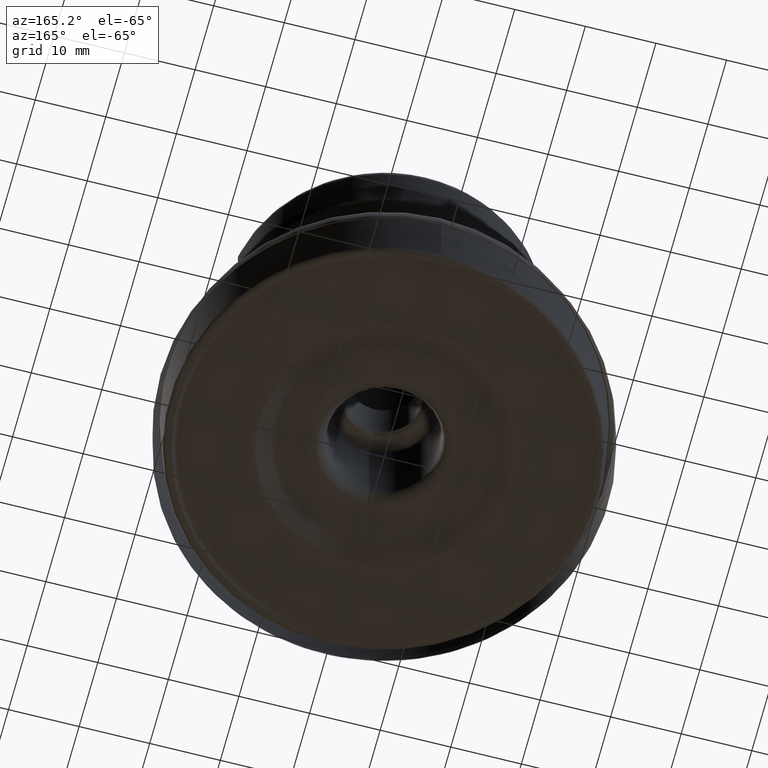
[diagram: clean part render]
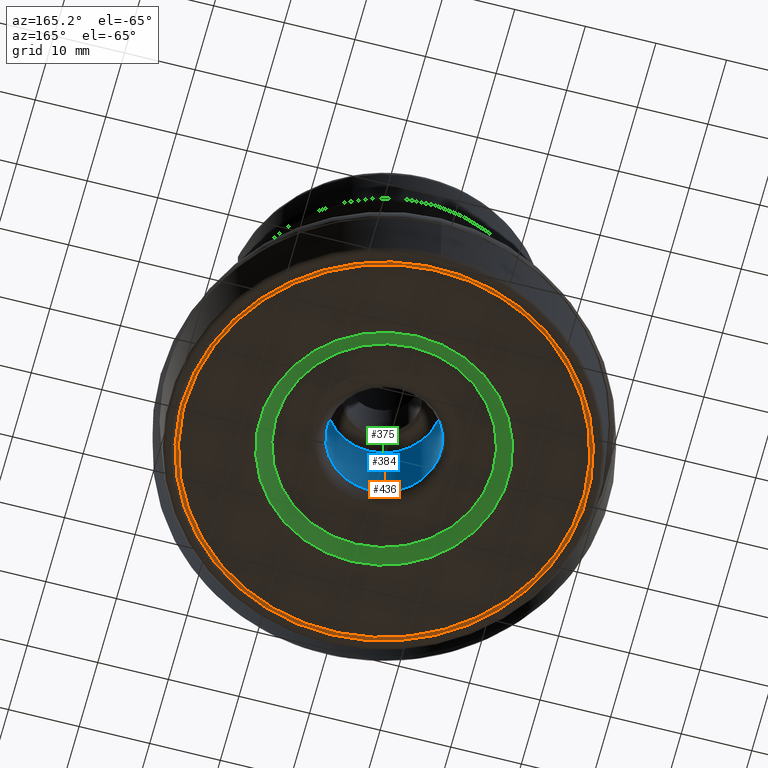
[diagram: same view with three faces highlighted in distinct colors, each labeled with its STEP entity id]
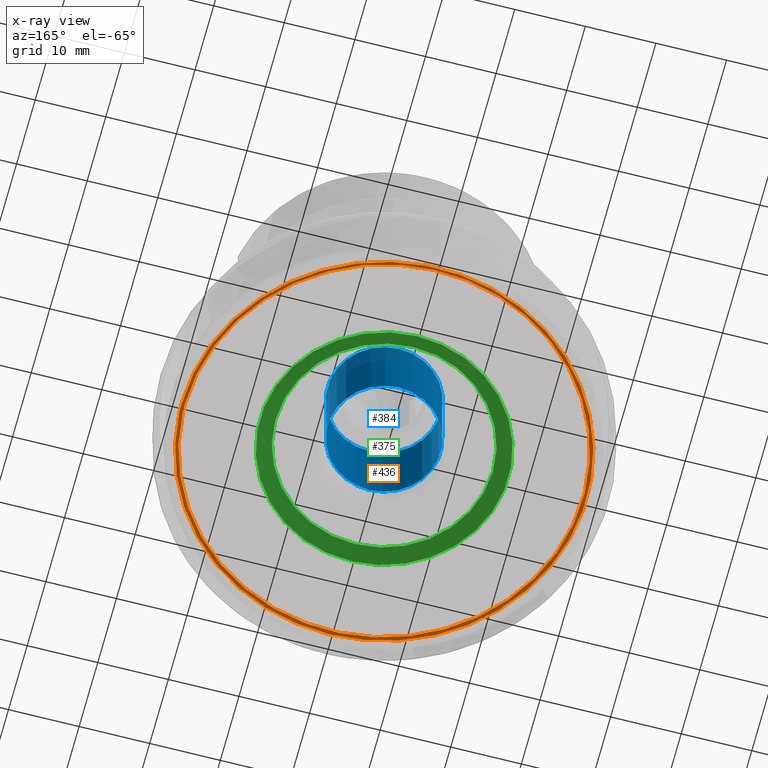
[diagram: x-ray of the same camera — body ghosted, the three highlighted faces saturated]
A machine part, auxiliary view with three faces highlighted in distinct colors.
The next image is the same camera in x-ray (body ghosted, the three faces saturated) — at least one of them is partly hidden behind the body in this view.
Their STEP definitions:

[orange] entity #436 — the highlighted face is a SurfaceOfRevolution surface.
#131=SURFACE_OF_REVOLUTION('',#1193,#155);
#155=AXIS1_PLACEMENT('',#2489,#1616);
#274=FACE_BOUND('',#602,.T.);
#275=FACE_BOUND('',#603,.T.);
#436=ADVANCED_FACE('',(#274,#275),#131,.F.);
#602=EDGE_LOOP('',(#907));
#603=EDGE_LOOP('',(#908));
#647=CIRCLE('',#1294,28.1812962252344);
#670=CIRCLE('',#1317,28.6527517008543);
#907=ORIENTED_EDGE('',*,*,#1124,.T.);
#908=ORIENTED_EDGE('',*,*,#1101,.F.);
#982=VERTEX_POINT('',#2293);
#1005=VERTEX_POINT('',#2478);
#1101=EDGE_CURVE('',#982,#982,#647,.T.);
#1124=EDGE_CURVE('',#1005,#1005,#670,.T.);
#1193=B_SPLINE_CURVE_WITH_KNOTS('',3,(#2484,#2485,#2486,#2487,#2488),
 .UNSPECIFIED.,.F.,.F.,(4,1,4),(0.,0.5,1.),.UNSPECIFIED.);
#1294=AXIS2_PLACEMENT_3D('',#2292,#1542,#1543);
#1317=AXIS2_PLACEMENT_3D('',#2477,#1613,#1614);
#1542=DIRECTION('',(0.,0.,1.));
#1543=DIRECTION('',(1.,0.,0.));
#1613=DIRECTION('',(0.,0.,1.));
#1614=DIRECTION('',(1.,0.,0.));
#1616=DIRECTION('',(0.,0.,1.));
#2292=CARTESIAN_POINT('',(0.,0.,0.567111206464912));
#2293=CARTESIAN_POINT('',(28.1812962252344,0.,0.567111206464912));
#2477=CARTESIAN_POINT('',(0.,0.,0.418992450459909));
#2478=CARTESIAN_POINT('',(28.6527517008543,0.,0.418992450459909));
#2484=CARTESIAN_POINT('',(28.0128869862442,-3.07629966523449,0.567111206464912));
#2485=CARTESIAN_POINT('',(28.0837538194055,-3.0766015023568,0.52529823533097));
#2486=CARTESIAN_POINT('',(28.2424503408592,-3.0971888393879,0.457162573047256));
#2487=CARTESIAN_POINT('',(28.4015198839661,-3.15714463390411,0.427673869567892));
#2488=CARTESIAN_POINT('',(28.4739626482085,-3.19587720966238,0.418992450459909));
#2489=CARTESIAN_POINT('',(0.,0.,0.));

[blue] entity #384 — the highlighted cylindrical surface (bore or boss wall) has radius 8 mm, axis along (0, -0, -1).
#164=CYLINDRICAL_SURFACE('',#1252,8.);
#186=FACE_BOUND('',#506,.T.);
#187=FACE_BOUND('',#507,.T.);
#384=ADVANCED_FACE('',(#186,#187),#164,.F.);
#506=EDGE_LOOP('',(#764));
#507=EDGE_LOOP('',(#765));
#632=CIRCLE('',#1250,8.);
#633=CIRCLE('',#1251,8.);
#764=ORIENTED_EDGE('',*,*,#1078,.T.);
#765=ORIENTED_EDGE('',*,*,#1079,.T.);
#965=VERTEX_POINT('',#2200);
#966=VERTEX_POINT('',#2202);
#1078=EDGE_CURVE('',#965,#965,#632,.T.);
#1079=EDGE_CURVE('',#966,#966,#633,.T.);
#1250=AXIS2_PLACEMENT_3D('',#2199,#1450,#1451);
#1251=AXIS2_PLACEMENT_3D('',#2201,#1452,#1453);
#1252=AXIS2_PLACEMENT_3D('',#2203,#1454,#1455);
#1450=DIRECTION('',(0.,-1.17145536458252E-15,-1.));
#1451=DIRECTION('',(0.,-1.,1.19262238973405E-15));
#1452=DIRECTION('',(0.,1.17145536458252E-15,1.));
#1453=DIRECTION('',(0.,-1.,1.3010426069826E-15));
#1454=DIRECTION('',(0.,-1.17145536458252E-15,-1.));
#1455=DIRECTION('',(0.,1.,-8.67361737988403E-16));
#2199=CARTESIAN_POINT('',(0.,5.27154914062136E-15,4.5));
#2200=CARTESIAN_POINT('',(0.,-8.,4.50000000000001));
#2201=CARTESIAN_POINT('',(0.,1.9973313966132E-14,17.05));
#2202=CARTESIAN_POINT('',(0.,-7.99999999999998,17.05));
#2203=CARTESIAN_POINT('',(0.,5.23054820286097E-14,44.65));

[green] entity #375 — the highlighted conical surface has half-angle 65 deg.
#180=FACE_BOUND('',#494,.T.);
#181=FACE_BOUND('',#495,.T.);
#280=CONICAL_SURFACE('',#1236,18.,65.);
#375=ADVANCED_FACE('',(#180,#181),#280,.F.);
#494=EDGE_LOOP('',(#734));
#495=EDGE_LOOP('',(#735));
#625=CIRCLE('',#1234,15.3995375094821);
#626=CIRCLE('',#1235,17.5981528018045);
#734=ORIENTED_EDGE('',*,*,#1059,.T.);
#735=ORIENTED_EDGE('',*,*,#1060,.T.);
#952=VERTEX_POINT('',#2093);
#953=VERTEX_POINT('',#2095);
#1059=EDGE_CURVE('',#952,#952,#625,.T.);
#1060=EDGE_CURVE('',#953,#953,#626,.T.);
#1234=AXIS2_PLACEMENT_3D('',#2092,#1410,#1411);
#1235=AXIS2_PLACEMENT_3D('',#2094,#1412,#1413);
#1236=AXIS2_PLACEMENT_3D('',#2096,#1414,#1415);
#1410=DIRECTION('',(0.,1.17145536458252E-15,1.));
#1411=DIRECTION('',(0.,1.,-1.18280152806803E-15));
#1412=DIRECTION('',(0.,-1.17145536458252E-15,-1.));
#1413=DIRECTION('',(0.,-1.,1.17056838346763E-15));
#1414=DIRECTION('',(0.,-1.17145536458252E-15,-1.));
#1415=DIRECTION('',(0.,1.,-1.18652700579547E-15));
#2092=CARTESIAN_POINT('',(0.,2.70912592046527E-15,2.31261557407331));
#2093=CARTESIAN_POINT('',(0.,15.3995375094821,2.31261557407329));
#2094=CARTESIAN_POINT('',(0.,1.50811339203183E-15,1.2873844259267));
#2095=CARTESIAN_POINT('',(0.,-17.5981528018045,1.28738442592672));
#2096=CARTESIAN_POINT('',(0.,1.28860090104078E-15,1.1));